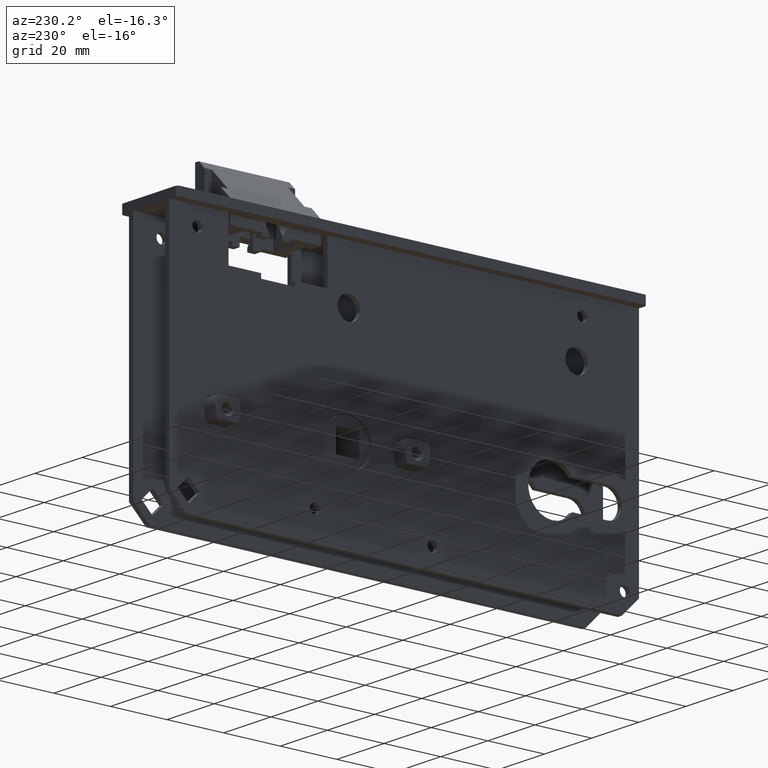
[diagram: clean part render]
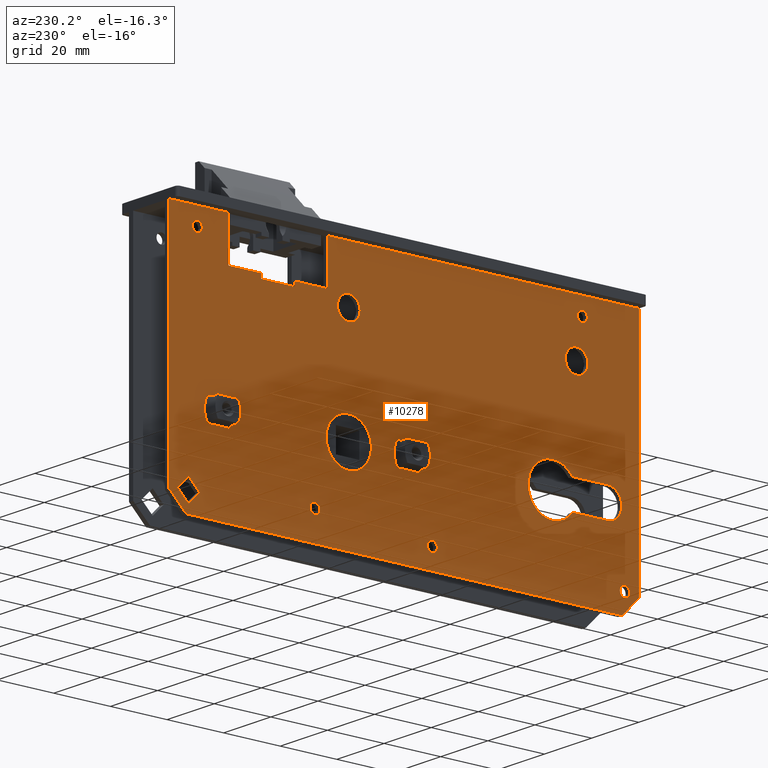
[diagram: same view with one face highlighted and labeled with its STEP entity id]
A machine part, auxiliary view. The second image highlights one B-rep face of the part: STEP entity #10278.
In plain terms, the highlighted planar face has unit normal (1, -0, 0).
Its self-contained STEP definition (entity closure, byte-faithful):
#1 = LINE ( 'NONE', #16878, #1610 ) ;
#57 = ORIENTED_EDGE ( 'NONE', *, *, #15429, .T. ) ;
#73 = ORIENTED_EDGE ( 'NONE', *, *, #82, .T. ) ;
#82 = EDGE_CURVE ( 'NONE', #15038, #3730, #16575, .T. ) ;
#93 = DIRECTION ( 'NONE',  ( 1.652117596168386277E-16, 1.000000000000000000, 1.766429458238740913E-15 ) ) ;
#138 = VECTOR ( 'NONE', #1923, 1000.000000000000114 ) ;
#185 = FACE_BOUND ( 'NONE', #13802, .T. ) ;
#215 = EDGE_LOOP ( 'NONE', ( #15592 ) ) ;
#231 = EDGE_LOOP ( 'NONE', ( #12084, #3676, #9453, #8192 ) ) ;
#271 = AXIS2_PLACEMENT_3D ( 'NONE', #13106, #4022, #5578 ) ;
#315 = VERTEX_POINT ( 'NONE', #9953 ) ;
#446 = CARTESIAN_POINT ( 'NONE',  ( -8.499999999999989342, 23.49999999999997513, -20.50000000000000355 ) ) ;
#537 = VECTOR ( 'NONE', #10323, 1000.000000000000000 ) ;
#656 = CARTESIAN_POINT ( 'NONE',  ( -8.499999999999984013, 61.99999999999995026, -18.10000000000000497 ) ) ;
#658 = VERTEX_POINT ( 'NONE', #8247 ) ;
#842 = CARTESIAN_POINT ( 'NONE',  ( -8.499999999999980460, 50.49999999999997158, -16.49999999999999645 ) ) ;
#1006 = VERTEX_POINT ( 'NONE', #9224 ) ;
#1055 = LINE ( 'NONE', #5900, #10754 ) ;
#1127 = CARTESIAN_POINT ( 'NONE',  ( -8.499999999999984013, 62.00000000000000000, -54.50000000000004974 ) ) ;
#1129 = DIRECTION ( 'NONE',  ( -1.784195975777012921E-16, -0.7071067811865459074, 0.7071067811865491270 ) ) ;
#1178 = ORIENTED_EDGE ( 'NONE', *, *, #18838, .T. ) ;
#1282 = ORIENTED_EDGE ( 'NONE', *, *, #18811, .T. ) ;
#1292 = CARTESIAN_POINT ( 'NONE',  ( -8.499999999999984013, 61.99999999999997158, -62.49999999999998579 ) ) ;
#1302 = CIRCLE ( 'NONE', #9158, 4.000000000000000000 ) ;
#1312 = DIRECTION ( 'NONE',  ( -0.000000000000000000, -1.000000000000000000, -0.000000000000000000 ) ) ;
#1402 = VERTEX_POINT ( 'NONE', #446 ) ;
#1441 = ORIENTED_EDGE ( 'NONE', *, *, #3894, .F. ) ;
#1473 = VERTEX_POINT ( 'NONE', #13992 ) ;
#1486 = EDGE_CURVE ( 'NONE', #10819, #7202, #14122, .T. ) ;
#1574 = CARTESIAN_POINT ( 'NONE',  ( -8.499999999999984013, 62.49999999999997158, -58.49999999999999289 ) ) ;
#1610 = VECTOR ( 'NONE', #10741, 1000.000000000000000 ) ;
#1759 = VERTEX_POINT ( 'NONE', #5515 ) ;
#1923 = DIRECTION ( 'NONE',  ( -1.168223555568283790E-16, -0.7071067811865474617, -0.7071067811865474617 ) ) ;
#1940 = DIRECTION ( 'NONE',  ( 0.000000000000000000, 0.000000000000000000, -1.000000000000000000 ) ) ;
#1947 = VERTEX_POINT ( 'NONE', #18530 ) ;
#1993 = VERTEX_POINT ( 'NONE', #6179 ) ;
#2069 = AXIS2_PLACEMENT_3D ( 'NONE', #13330, #7536, #16494 ) ;
#2074 = DIRECTION ( 'NONE',  ( 1.000000000000000000, -1.652117596168386277E-16, 0.000000000000000000 ) ) ;
#2168 = VECTOR ( 'NONE', #8171, 1000.000000000000000 ) ;
#2227 = ORIENTED_EDGE ( 'NONE', *, *, #14519, .T. ) ;
#2266 = EDGE_CURVE ( 'NONE', #8989, #12072, #1055, .T. ) ;
#2275 = VERTEX_POINT ( 'NONE', #19388 ) ;
#2365 = ORIENTED_EDGE ( 'NONE', *, *, #2266, .T. ) ;
#2415 = CIRCLE ( 'NONE', #11269, 1.750000000000001554 ) ;
#2505 = FACE_BOUND ( 'NONE', #14088, .T. ) ;
#2512 = AXIS2_PLACEMENT_3D ( 'NONE', #11110, #2074, #14198 ) ;
#2536 = DIRECTION ( 'NONE',  ( 0.000000000000000000, 1.000000000000000000, 0.000000000000000000 ) ) ;
#2557 = CARTESIAN_POINT ( 'NONE',  ( -8.500000000000003553, -63.00000000000001421, -7.500000000000007105 ) ) ;
#2630 = DIRECTION ( 'NONE',  ( 0.000000000000000000, 1.000000000000000000, 0.000000000000000000 ) ) ;
#2675 = VECTOR ( 'NONE', #4209, 1000.000000000000114 ) ;
#2694 = CARTESIAN_POINT ( 'NONE',  ( -8.499999999999982236, 67.55545635173697860, -95.05545635173699281 ) ) ;
#2746 = CARTESIAN_POINT ( 'NONE',  ( -8.499999999999992895, 26.99999999999997158, -1.500000000000000000 ) ) ;
#2772 = DIRECTION ( 'NONE',  ( 1.000000000000000000, -1.652117596168386277E-16, 0.000000000000000000 ) ) ;
#2854 = EDGE_CURVE ( 'NONE', #14000, #2956, #3626, .T. ) ;
#2877 = ORIENTED_EDGE ( 'NONE', *, *, #14469, .T. ) ;
#2932 = VECTOR ( 'NONE', #17921, 1000.000000000000000 ) ;
#2956 = VERTEX_POINT ( 'NONE', #14318 ) ;
#3063 = EDGE_CURVE ( 'NONE', #13145, #13145, #19286, .T. ) ;
#3101 = EDGE_CURVE ( 'NONE', #12387, #3689, #7231, .T. ) ;
#3333 = EDGE_LOOP ( 'NONE', ( #15862, #12240, #13845, #14138 ) ) ;
#3341 = LINE ( 'NONE', #12949, #12580 ) ;
#3446 = CARTESIAN_POINT ( 'NONE',  ( -8.499999999999982236, 74.75000000000000000, -7.500000000000007105 ) ) ;
#3587 = LINE ( 'NONE', #14511, #2168 ) ;
#3593 = VECTOR ( 'NONE', #7440, 1000.000000000000000 ) ;
#3596 = CARTESIAN_POINT ( 'NONE',  ( -8.499999999999982236, 70.55545635173697860, -80.94454364826299297 ) ) ;
#3626 = LINE ( 'NONE', #13997, #138 ) ;
#3676 = ORIENTED_EDGE ( 'NONE', *, *, #15837, .T. ) ;
#3689 = VERTEX_POINT ( 'NONE', #6866 ) ;
#3703 = FACE_BOUND ( 'NONE', #3333, .T. ) ;
#3730 = VERTEX_POINT ( 'NONE', #8559 ) ;
#3757 = VERTEX_POINT ( 'NONE', #19015 ) ;
#3770 = ORIENTED_EDGE ( 'NONE', *, *, #3911, .T. ) ;
#3892 = LINE ( 'NONE', #656, #13881 ) ;
#3894 = EDGE_CURVE ( 'NONE', #3757, #10399, #6482, .T. ) ;
#3911 = EDGE_CURVE ( 'NONE', #13617, #13617, #8836, .T. ) ;
#3912 = VERTEX_POINT ( 'NONE', #9167 ) ;
#4009 = DIRECTION ( 'NONE',  ( 2.168404344971008868E-16, 1.000000000000000000, 0.000000000000000000 ) ) ;
#4022 = DIRECTION ( 'NONE',  ( 1.000000000000000000, -1.652117596168386277E-16, 0.000000000000000000 ) ) ;
#4037 = CARTESIAN_POINT ( 'NONE',  ( -8.499999999999980460, 500000.0000000000582, -16.50000000000000000 ) ) ;
#4106 = CIRCLE ( 'NONE', #271, 4.000000000000003553 ) ;
#4165 = FACE_BOUND ( 'NONE', #8933, .T. ) ;
#4209 = DIRECTION ( 'NONE',  ( 1.168223555568283790E-16, 0.7071067811865474617, 0.7071067811865474617 ) ) ;
#4249 = CIRCLE ( 'NONE', #12393, 1.749999999999994671 ) ;
#4300 = EDGE_LOOP ( 'NONE', ( #17624 ) ) ;
#4530 = CARTESIAN_POINT ( 'NONE',  ( -8.499999999999984013, 61.99999999999997158, -54.49999999999999289 ) ) ;
#4604 = CIRCLE ( 'NONE', #16727, 8.000000000000000000 ) ;
#4725 = CARTESIAN_POINT ( 'NONE',  ( -8.499999999999987566, 50.49999999999997868, -18.09999999999999787 ) ) ;
#4922 = FACE_OUTER_BOUND ( 'NONE', #5155, .T. ) ;
#4967 = VECTOR ( 'NONE', #8760, 1000.000000000000000 ) ;
#4972 = EDGE_CURVE ( 'NONE', #5188, #11012, #3587, .T. ) ;
#5020 = CARTESIAN_POINT ( 'NONE',  ( -8.500000000000003553, -59.52281994643179530, -53.45000000000000284 ) ) ;
#5022 = CARTESIAN_POINT ( 'NONE',  ( -8.499999999999982236, 76.99999999999997158, -89.50000000000000000 ) ) ;
#5059 = VECTOR ( 'NONE', #18694, 1000.000000000000114 ) ;
#5155 = EDGE_LOOP ( 'NONE', ( #5158, #13705, #12026, #2365, #5782, #15272, #57, #13455, #11621, #16894, #18496, #1441, #13389, #8055 ) ) ;
#5158 = ORIENTED_EDGE ( 'NONE', *, *, #17371, .T. ) ;
#5188 = VERTEX_POINT ( 'NONE', #13448 ) ;
#5228 = ORIENTED_EDGE ( 'NONE', *, *, #5784, .T. ) ;
#5237 = DIRECTION ( 'NONE',  ( 2.005460665869139809E-16, 1.000000000000000000, 0.000000000000000000 ) ) ;
#5366 = PLANE ( 'NONE',  #17711 ) ;
#5392 = VECTOR ( 'NONE', #93, 1000.000000000000000 ) ;
#5515 = CARTESIAN_POINT ( 'NONE',  ( -8.499999999999980460, 82.99999999999998579, -1.500000000000000000 ) ) ;
#5578 = DIRECTION ( 'NONE',  ( 0.000000000000000000, 1.000000000000000000, 0.000000000000000000 ) ) ;
#5782 = ORIENTED_EDGE ( 'NONE', *, *, #7538, .T. ) ;
#5784 = EDGE_CURVE ( 'NONE', #1947, #1947, #9582, .T. ) ;
#5859 = ORIENTED_EDGE ( 'NONE', *, *, #9183, .T. ) ;
#5870 = CARTESIAN_POINT ( 'NONE',  ( -8.499999999999982236, 76.11091270347397142, -78.72182540694797126 ) ) ;
#5900 = CARTESIAN_POINT ( 'NONE',  ( -8.499999999999984013, 61.99999999999997158, -89.50000000000000000 ) ) ;
#5980 = DIRECTION ( 'NONE',  ( 1.000000000000000000, -1.652117596168386277E-16, 0.000000000000000000 ) ) ;
#6033 = CARTESIAN_POINT ( 'NONE',  ( -8.499999999999984013, 61.99999999999992184, -62.49999999999989342 ) ) ;
#6179 = CARTESIAN_POINT ( 'NONE',  ( -8.499999999999984013, 61.57179676972446458, -54.49999999999999289 ) ) ;
#6375 = EDGE_LOOP ( 'NONE', ( #18731 ) ) ;
#6397 = VERTEX_POINT ( 'NONE', #3446 ) ;
#6482 = LINE ( 'NONE', #18272, #18779 ) ;
#6517 = LINE ( 'NONE', #8997, #2932 ) ;
#6625 = CARTESIAN_POINT ( 'NONE',  ( -8.499999999999984013, 61.99999999999997158, -89.50000000000000000 ) ) ;
#6779 = ORIENTED_EDGE ( 'NONE', *, *, #8455, .T. ) ;
#6833 = CARTESIAN_POINT ( 'NONE',  ( -8.500000000000021316, -83.00000000000001421, -89.50000000000000000 ) ) ;
#6857 = DIRECTION ( 'NONE',  ( -1.652117596168386277E-16, -1.000000000000000000, 0.000000000000000000 ) ) ;
#6866 = CARTESIAN_POINT ( 'NONE',  ( -8.499999999999992895, -5.428203230275513214, -54.49999999999998579 ) ) ;
#7090 = EDGE_CURVE ( 'NONE', #1473, #1473, #11870, .T. ) ;
#7155 = DIRECTION ( 'NONE',  ( 1.000000000000000000, -1.652117596168386277E-16, 0.000000000000000000 ) ) ;
#7164 = AXIS2_PLACEMENT_3D ( 'NONE', #13536, #5980, #12261 ) ;
#7202 = VERTEX_POINT ( 'NONE', #18252 ) ;
#7223 = EDGE_CURVE ( 'NONE', #18857, #10399, #17316, .T. ) ;
#7229 = ORIENTED_EDGE ( 'NONE', *, *, #3101, .T. ) ;
#7231 = LINE ( 'NONE', #1127, #16160 ) ;
#7321 = CARTESIAN_POINT ( 'NONE',  ( -8.500000000000019540, -77.00000000000004263, -89.50000000000000000 ) ) ;
#7334 = VECTOR ( 'NONE', #17313, 1000.000000000000000 ) ;
#7343 = CARTESIAN_POINT ( 'NONE',  ( -8.499999999999984013, 61.99999999999997158, -1.500000000000000000 ) ) ;
#7404 = EDGE_CURVE ( 'NONE', #658, #1759, #3341, .T. ) ;
#7440 = DIRECTION ( 'NONE',  ( 2.523234146875355998E-16, 1.000000000000000000, 0.000000000000000000 ) ) ;
#7479 = EDGE_LOOP ( 'NONE', ( #15216 ) ) ;
#7494 = EDGE_CURVE ( 'NONE', #8989, #16438, #17068, .T. ) ;
#7536 = DIRECTION ( 'NONE',  ( 1.000000000000000000, -1.652117596168386277E-16, 0.000000000000000000 ) ) ;
#7538 = EDGE_CURVE ( 'NONE', #12072, #1759, #13780, .T. ) ;
#7651 = AXIS2_PLACEMENT_3D ( 'NONE', #18656, #14233, #5237 ) ;
#7755 = CARTESIAN_POINT ( 'NONE',  ( -8.499999999999984013, 68.49999999999997158, -58.49999999999999289 ) ) ;
#7794 = CARTESIAN_POINT ( 'NONE',  ( -8.499999999999992895, 2.428203230275482127, -54.49999999999999289 ) ) ;
#7835 = VERTEX_POINT ( 'NONE', #5020 ) ;
#7911 = LINE ( 'NONE', #5022, #5059 ) ;
#7935 = CARTESIAN_POINT ( 'NONE',  ( -8.499999999999989342, 31.49999999999997868, -79.50000000000000000 ) ) ;
#7953 = DIRECTION ( 'NONE',  ( 0.000000000000000000, 1.000000000000000000, 0.000000000000000000 ) ) ;
#7989 = CARTESIAN_POINT ( 'NONE',  ( -8.499999999999992895, 2.428203230275483016, -62.50000000000000000 ) ) ;
#8051 = VECTOR ( 'NONE', #9174, 1000.000000000000114 ) ;
#8055 = ORIENTED_EDGE ( 'NONE', *, *, #1486, .T. ) ;
#8146 = DIRECTION ( 'NONE',  ( 1.000000000000000000, -1.652117596168386277E-16, 0.000000000000000000 ) ) ;
#8171 = DIRECTION ( 'NONE',  ( 1.652117596168386277E-16, 1.000000000000000000, 0.000000000000000000 ) ) ;
#8192 = ORIENTED_EDGE ( 'NONE', *, *, #13603, .T. ) ;
#8247 = CARTESIAN_POINT ( 'NONE',  ( -8.499999999999980460, 82.99999999999998579, -83.49999999999994316 ) ) ;
#8455 = EDGE_CURVE ( 'NONE', #1006, #1006, #4249, .T. ) ;
#8457 = FACE_BOUND ( 'NONE', #11678, .T. ) ;
#8559 = CARTESIAN_POINT ( 'NONE',  ( -8.499999999999984013, 69.42820323027548568, -54.49999999999999289 ) ) ;
#8632 = DIRECTION ( 'NONE',  ( -0.000000000000000000, -1.000000000000000000, -0.000000000000000000 ) ) ;
#8760 = DIRECTION ( 'NONE',  ( 1.652117596168386277E-16, 1.000000000000000000, 0.000000000000000000 ) ) ;
#8836 = CIRCLE ( 'NONE', #7164, 8.000000000000000000 ) ;
#8932 = FACE_BOUND ( 'NONE', #215, .T. ) ;
#8933 = EDGE_LOOP ( 'NONE', ( #1282, #73, #5859, #2877 ) ) ;
#8974 = CARTESIAN_POINT ( 'NONE',  ( -8.499999999999982236, 74.44454364826299297, -77.05545635173697860 ) ) ;
#8989 = VERTEX_POINT ( 'NONE', #12309 ) ;
#8997 = CARTESIAN_POINT ( 'NONE',  ( -8.499999999999985789, 50.50000000000028422, -89.50000000000005684 ) ) ;
#9111 = CIRCLE ( 'NONE', #18391, 8.000000000000007105 ) ;
#9120 = EDGE_CURVE ( 'NONE', #11399, #14000, #10651, .T. ) ;
#9158 = AXIS2_PLACEMENT_3D ( 'NONE', #18502, #16980, #7953 ) ;
#9166 = FACE_BOUND ( 'NONE', #10118, .T. ) ;
#9167 = CARTESIAN_POINT ( 'NONE',  ( -8.499999999999991118, -5.428203230275524760, -62.50000000000001421 ) ) ;
#9174 = DIRECTION ( 'NONE',  ( 1.168223555568283790E-16, 0.7071067811865474617, -0.7071067811865474617 ) ) ;
#9183 = EDGE_CURVE ( 'NONE', #3730, #1993, #14215, .T. ) ;
#9220 = LINE ( 'NONE', #3596, #8051 ) ;
#9224 = CARTESIAN_POINT ( 'NONE',  ( -8.499999999999989342, 33.24999999999997158, -79.50000000000000000 ) ) ;
#9291 = CARTESIAN_POINT ( 'NONE',  ( -8.500000000000003553, -57.00000000000000711, -20.50000000000000355 ) ) ;
#9298 = CIRCLE ( 'NONE', #7651, 8.650000000000005684 ) ;
#9366 = EDGE_CURVE ( 'NONE', #2956, #315, #9220, .T. ) ;
#9425 = FACE_BOUND ( 'NONE', #231, .T. ) ;
#9453 = ORIENTED_EDGE ( 'NONE', *, *, #13630, .T. ) ;
#9582 = CIRCLE ( 'NONE', #12989, 1.749999999999996447 ) ;
#9611 = VECTOR ( 'NONE', #8632, 1000.000000000000000 ) ;
#9618 = ORIENTED_EDGE ( 'NONE', *, *, #14266, .T. ) ;
#9706 = VECTOR ( 'NONE', #13420, 1000.000000000000000 ) ;
#9736 = VERTEX_POINT ( 'NONE', #4725 ) ;
#9797 = AXIS2_PLACEMENT_3D ( 'NONE', #1574, #16774, #18162 ) ;
#9805 = CARTESIAN_POINT ( 'NONE',  ( -8.499999999999984013, 69.42820323027548568, -62.49999999999998579 ) ) ;
#9953 = CARTESIAN_POINT ( 'NONE',  ( -8.499999999999980460, 76.11091270347397142, -86.50000000000000000 ) ) ;
#10073 = VECTOR ( 'NONE', #1940, 1000.000000000000000 ) ;
#10116 = EDGE_CURVE ( 'NONE', #3912, #16804, #10588, .T. ) ;
#10118 = EDGE_LOOP ( 'NONE', ( #5228 ) ) ;
#10278 = ADVANCED_FACE ( 'NONE', ( #2505, #13679, #9425, #8457, #13191, #9166, #16487, #8932, #12232, #4165, #185, #3703, #4922 ), #5366, .F. ) ;
#10323 = DIRECTION ( 'NONE',  ( 1.652117596168386277E-16, 1.000000000000000000, 0.000000000000000000 ) ) ;
#10399 = VERTEX_POINT ( 'NONE', #2746 ) ;
#10588 = LINE ( 'NONE', #6033, #5392 ) ;
#10651 = LINE ( 'NONE', #8974, #11817 ) ;
#10741 = DIRECTION ( 'NONE',  ( 1.652117596168386277E-16, 1.000000000000000000, 0.000000000000000000 ) ) ;
#10754 = VECTOR ( 'NONE', #13514, 1000.000000000000000 ) ;
#10819 = VERTEX_POINT ( 'NONE', #13650 ) ;
#11012 = VERTEX_POINT ( 'NONE', #14423 ) ;
#11071 = CIRCLE ( 'NONE', #2069, 8.000000000000000000 ) ;
#11110 = CARTESIAN_POINT ( 'NONE',  ( -8.500000000000005329, -71.90000000000000568, -58.50000000000000000 ) ) ;
#11187 = DIRECTION ( 'NONE',  ( 1.652117596168386277E-16, 1.000000000000000000, 2.891205793294677833E-16 ) ) ;
#11269 = AXIS2_PLACEMENT_3D ( 'NONE', #19109, #17508, #2536 ) ;
#11399 = VERTEX_POINT ( 'NONE', #12540 ) ;
#11420 = CARTESIAN_POINT ( 'NONE',  ( -8.499999999999992895, -4.500000000000025757, -58.50000000000000000 ) ) ;
#11570 = CARTESIAN_POINT ( 'NONE',  ( -8.500000000000019540, -77.00000000000004263, -89.50000000000000000 ) ) ;
#11575 = EDGE_CURVE ( 'NONE', #10819, #3757, #17630, .T. ) ;
#11621 = ORIENTED_EDGE ( 'NONE', *, *, #12616, .T. ) ;
#11678 = EDGE_LOOP ( 'NONE', ( #3770 ) ) ;
#11719 = CARTESIAN_POINT ( 'NONE',  ( -8.500000000000005329, -78.00000000000002842, -82.49999999999998579 ) ) ;
#11720 = EDGE_CURVE ( 'NONE', #17985, #17985, #4106, .T. ) ;
#11758 = EDGE_CURVE ( 'NONE', #9736, #16438, #6517, .T. ) ;
#11817 = VECTOR ( 'NONE', #17899, 1000.000000000000114 ) ;
#11818 = CARTESIAN_POINT ( 'NONE',  ( -8.499999999999980460, 500000.0000000000582, -16.50000000000000000 ) ) ;
#11870 = CIRCLE ( 'NONE', #13391, 1.750000000000001554 ) ;
#12002 = CARTESIAN_POINT ( 'NONE',  ( -8.500000000000021316, -83.00000000000001421, -1.500000000000000000 ) ) ;
#12026 = ORIENTED_EDGE ( 'NONE', *, *, #7494, .F. ) ;
#12054 = DIRECTION ( 'NONE',  ( -0.000000000000000000, -0.000000000000000000, 1.000000000000000000 ) ) ;
#12072 = VERTEX_POINT ( 'NONE', #13006 ) ;
#12084 = ORIENTED_EDGE ( 'NONE', *, *, #4972, .T. ) ;
#12230 = DIRECTION ( 'NONE',  ( 2.168404344971006896E-16, 1.000000000000000000, 0.000000000000000000 ) ) ;
#12232 = FACE_BOUND ( 'NONE', #6375, .T. ) ;
#12240 = ORIENTED_EDGE ( 'NONE', *, *, #9120, .T. ) ;
#12261 = DIRECTION ( 'NONE',  ( 2.168404344971008868E-16, 1.000000000000000000, 0.000000000000000000 ) ) ;
#12309 = CARTESIAN_POINT ( 'NONE',  ( -8.499999999999980460, 61.99999999995498001, -16.50000000000000000 ) ) ;
#12387 = VERTEX_POINT ( 'NONE', #7794 ) ;
#12393 = AXIS2_PLACEMENT_3D ( 'NONE', #7935, #12476, #13887 ) ;
#12476 = DIRECTION ( 'NONE',  ( 1.000000000000000000, -1.652117596168386277E-16, 0.000000000000000000 ) ) ;
#12516 = CARTESIAN_POINT ( 'NONE',  ( -8.500000000000003553, -61.25000000000001421, -7.500000000000007105 ) ) ;
#12540 = CARTESIAN_POINT ( 'NONE',  ( -8.499999999999980460, 79.99999999999998579, -82.61091270347398563 ) ) ;
#12580 = VECTOR ( 'NONE', #13087, 1000.000000000000000 ) ;
#12616 = EDGE_CURVE ( 'NONE', #13454, #2275, #16409, .T. ) ;
#12628 = VECTOR ( 'NONE', #1129, 1000.000000000000114 ) ;
#12811 = VECTOR ( 'NONE', #6857, 1000.000000000000000 ) ;
#12949 = CARTESIAN_POINT ( 'NONE',  ( -8.499999999999980460, 82.99999999999998579, -89.50000000000000000 ) ) ;
#12989 = AXIS2_PLACEMENT_3D ( 'NONE', #17222, #18877, #15650 ) ;
#13006 = CARTESIAN_POINT ( 'NONE',  ( -8.499999999999984013, 61.99999999999997158, -1.500000000000000000 ) ) ;
#13054 = EDGE_CURVE ( 'NONE', #6397, #6397, #2415, .T. ) ;
#13078 = LINE ( 'NONE', #16756, #12811 ) ;
#13087 = DIRECTION ( 'NONE',  ( -0.000000000000000000, -0.000000000000000000, 1.000000000000000000 ) ) ;
#13106 = CARTESIAN_POINT ( 'NONE',  ( -8.500000000000003553, -61.00000000000001421, -20.50000000000000355 ) ) ;
#13145 = VERTEX_POINT ( 'NONE', #12516 ) ;
#13191 = FACE_BOUND ( 'NONE', #7479, .T. ) ;
#13330 = CARTESIAN_POINT ( 'NONE',  ( -8.499999999999992895, 1.499999999999974465, -58.50000000000000000 ) ) ;
#13389 = ORIENTED_EDGE ( 'NONE', *, *, #11575, .F. ) ;
#13391 = AXIS2_PLACEMENT_3D ( 'NONE', #11719, #2772, #2630 ) ;
#13420 = DIRECTION ( 'NONE',  ( -1.652117596168386277E-16, -1.000000000000000000, 0.000000000000000000 ) ) ;
#13448 = CARTESIAN_POINT ( 'NONE',  ( -8.500000000000005329, -71.90000000000000568, -63.54999999999999716 ) ) ;
#13454 = VERTEX_POINT ( 'NONE', #7321 ) ;
#13455 = ORIENTED_EDGE ( 'NONE', *, *, #19024, .F. ) ;
#13514 = DIRECTION ( 'NONE',  ( -0.000000000000000000, -0.000000000000000000, 1.000000000000000000 ) ) ;
#13536 = CARTESIAN_POINT ( 'NONE',  ( -8.499999999999989342, 19.49999999999997513, -58.50000000000000000 ) ) ;
#13603 = EDGE_CURVE ( 'NONE', #15420, #5188, #16368, .T. ) ;
#13617 = VERTEX_POINT ( 'NONE', #13795 ) ;
#13630 = EDGE_CURVE ( 'NONE', #7835, #15420, #13078, .T. ) ;
#13634 = AXIS2_PLACEMENT_3D ( 'NONE', #2557, #14698, #19127 ) ;
#13650 = CARTESIAN_POINT ( 'NONE',  ( -8.499999999999980460, 38.49999999999909051, -16.50000000000000000 ) ) ;
#13679 = FACE_BOUND ( 'NONE', #4300, .T. ) ;
#13705 = ORIENTED_EDGE ( 'NONE', *, *, #11758, .T. ) ;
#13780 = LINE ( 'NONE', #7343, #537 ) ;
#13795 = CARTESIAN_POINT ( 'NONE',  ( -8.499999999999989342, 27.49999999999997513, -58.50000000000000000 ) ) ;
#13802 = EDGE_LOOP ( 'NONE', ( #15689, #9618, #7229, #1178 ) ) ;
#13832 = DIRECTION ( 'NONE',  ( 1.000000000000000000, -1.652117596168386277E-16, 0.000000000000000000 ) ) ;
#13845 = ORIENTED_EDGE ( 'NONE', *, *, #2854, .T. ) ;
#13881 = VECTOR ( 'NONE', #11187, 1000.000000000000000 ) ;
#13887 = DIRECTION ( 'NONE',  ( 0.000000000000000000, 1.000000000000000000, 0.000000000000000000 ) ) ;
#13992 = CARTESIAN_POINT ( 'NONE',  ( -8.500000000000005329, -76.25000000000002842, -82.49999999999998579 ) ) ;
#13997 = CARTESIAN_POINT ( 'NONE',  ( -8.499999999999984013, 63.66636905521096423, -91.16636905521099266 ) ) ;
#14000 = VERTEX_POINT ( 'NONE', #5870 ) ;
#14088 = EDGE_LOOP ( 'NONE', ( #2227 ) ) ;
#14122 = LINE ( 'NONE', #18560, #10073 ) ;
#14130 = VERTEX_POINT ( 'NONE', #14305 ) ;
#14138 = ORIENTED_EDGE ( 'NONE', *, *, #9366, .T. ) ;
#14198 = DIRECTION ( 'NONE',  ( 0.000000000000000000, 1.000000000000000000, 0.000000000000000000 ) ) ;
#14215 = LINE ( 'NONE', #4530, #9706 ) ;
#14233 = DIRECTION ( 'NONE',  ( 1.000000000000000000, -1.652117596168386277E-16, 0.000000000000000000 ) ) ;
#14266 = EDGE_CURVE ( 'NONE', #16804, #12387, #4604, .T. ) ;
#14305 = CARTESIAN_POINT ( 'NONE',  ( -8.499999999999982236, 76.99999999999997158, -89.50000000000000000 ) ) ;
#14318 = CARTESIAN_POINT ( 'NONE',  ( -8.499999999999982236, 72.22182540694797126, -82.61091270347398563 ) ) ;
#14423 = CARTESIAN_POINT ( 'NONE',  ( -8.500000000000003553, -59.52281994643179530, -63.55000000000001137 ) ) ;
#14469 = EDGE_CURVE ( 'NONE', #1993, #14853, #9111, .T. ) ;
#14511 = CARTESIAN_POINT ( 'NONE',  ( -8.499999999999984013, 61.99999999999997158, -63.55000000000001137 ) ) ;
#14519 = EDGE_CURVE ( 'NONE', #1402, #1402, #1302, .T. ) ;
#14698 = DIRECTION ( 'NONE',  ( 1.000000000000000000, -1.652117596168386277E-16, 0.000000000000000000 ) ) ;
#14764 = DIRECTION ( 'NONE',  ( -1.652117596168386277E-16, -1.000000000000000000, 8.832147291193704566E-16 ) ) ;
#14853 = VERTEX_POINT ( 'NONE', #16742 ) ;
#15038 = VERTEX_POINT ( 'NONE', #9805 ) ;
#15216 = ORIENTED_EDGE ( 'NONE', *, *, #7090, .T. ) ;
#15272 = ORIENTED_EDGE ( 'NONE', *, *, #7404, .F. ) ;
#15401 = LINE ( 'NONE', #6833, #7334 ) ;
#15420 = VERTEX_POINT ( 'NONE', #17033 ) ;
#15429 = EDGE_CURVE ( 'NONE', #658, #14130, #7911, .T. ) ;
#15592 = ORIENTED_EDGE ( 'NONE', *, *, #13054, .T. ) ;
#15650 = DIRECTION ( 'NONE',  ( 0.000000000000000000, 1.000000000000000000, 0.000000000000000000 ) ) ;
#15661 = VECTOR ( 'NONE', #1312, 1000.000000000000000 ) ;
#15689 = ORIENTED_EDGE ( 'NONE', *, *, #10116, .T. ) ;
#15837 = EDGE_CURVE ( 'NONE', #11012, #7835, #9298, .T. ) ;
#15862 = ORIENTED_EDGE ( 'NONE', *, *, #17828, .T. ) ;
#16160 = VECTOR ( 'NONE', #14764, 1000.000000000000000 ) ;
#16368 = CIRCLE ( 'NONE', #2512, 5.049999999999998934 ) ;
#16409 = LINE ( 'NONE', #11570, #12628 ) ;
#16438 = VERTEX_POINT ( 'NONE', #842 ) ;
#16487 = FACE_BOUND ( 'NONE', #18227, .T. ) ;
#16494 = DIRECTION ( 'NONE',  ( 2.168404344971008868E-16, 1.000000000000000000, 0.000000000000000000 ) ) ;
#16575 = CIRCLE ( 'NONE', #9797, 8.000000000000007105 ) ;
#16671 = CARTESIAN_POINT ( 'NONE',  ( -8.500000000000021316, -83.00000000000001421, -1.500000000000000000 ) ) ;
#16727 = AXIS2_PLACEMENT_3D ( 'NONE', #11420, #7155, #4009 ) ;
#16742 = CARTESIAN_POINT ( 'NONE',  ( -8.499999999999982236, 61.57179676972446458, -62.49999999999998579 ) ) ;
#16756 = CARTESIAN_POINT ( 'NONE',  ( -8.499999999999984013, 61.99999999999997158, -53.45000000000000284 ) ) ;
#16774 = DIRECTION ( 'NONE',  ( 1.000000000000000000, -1.652117596168386277E-16, 0.000000000000000000 ) ) ;
#16804 = VERTEX_POINT ( 'NONE', #7989 ) ;
#16878 = CARTESIAN_POINT ( 'NONE',  ( -8.499999999999984013, 61.99999999999997158, -89.50000000000000000 ) ) ;
#16894 = ORIENTED_EDGE ( 'NONE', *, *, #18229, .T. ) ;
#16980 = DIRECTION ( 'NONE',  ( 1.000000000000000000, -1.652117596168386277E-16, 0.000000000000000000 ) ) ;
#17033 = CARTESIAN_POINT ( 'NONE',  ( -8.500000000000005329, -71.90000000000001990, -53.45000000000000284 ) ) ;
#17068 = LINE ( 'NONE', #11818, #15661 ) ;
#17129 = LINE ( 'NONE', #2694, #2675 ) ;
#17222 = CARTESIAN_POINT ( 'NONE',  ( -8.499999999999994671, -10.00000000000002309, -82.49999999999998579 ) ) ;
#17313 = DIRECTION ( 'NONE',  ( -0.000000000000000000, -0.000000000000000000, 1.000000000000000000 ) ) ;
#17316 = LINE ( 'NONE', #16671, #3593 ) ;
#17371 = EDGE_CURVE ( 'NONE', #7202, #9736, #3892, .T. ) ;
#17508 = DIRECTION ( 'NONE',  ( 1.000000000000000000, -1.652117596168386277E-16, 0.000000000000000000 ) ) ;
#17624 = ORIENTED_EDGE ( 'NONE', *, *, #11720, .T. ) ;
#17630 = LINE ( 'NONE', #4037, #9611 ) ;
#17711 = AXIS2_PLACEMENT_3D ( 'NONE', #6625, #8146, #18768 ) ;
#17828 = EDGE_CURVE ( 'NONE', #315, #11399, #17129, .T. ) ;
#17899 = DIRECTION ( 'NONE',  ( -1.168223555568283790E-16, -0.7071067811865474617, 0.7071067811865474617 ) ) ;
#17921 = DIRECTION ( 'NONE',  ( -7.164917947869172576E-31, -4.336808689942016158E-15, 1.000000000000000000 ) ) ;
#17985 = VERTEX_POINT ( 'NONE', #9291 ) ;
#18162 = DIRECTION ( 'NONE',  ( 2.168404344971006896E-16, 1.000000000000000000, 0.000000000000000000 ) ) ;
#18227 = EDGE_LOOP ( 'NONE', ( #6779 ) ) ;
#18229 = EDGE_CURVE ( 'NONE', #2275, #18857, #15401, .T. ) ;
#18252 = CARTESIAN_POINT ( 'NONE',  ( -8.499999999999987566, 38.49999999999997158, -18.10000000000000142 ) ) ;
#18272 = CARTESIAN_POINT ( 'NONE',  ( -8.499999999999992895, 26.99999999999997158, -89.50000000000000000 ) ) ;
#18391 = AXIS2_PLACEMENT_3D ( 'NONE', #7755, #13832, #12230 ) ;
#18496 = ORIENTED_EDGE ( 'NONE', *, *, #7223, .T. ) ;
#18502 = CARTESIAN_POINT ( 'NONE',  ( -8.499999999999989342, 19.49999999999997513, -20.50000000000000355 ) ) ;
#18530 = CARTESIAN_POINT ( 'NONE',  ( -8.499999999999994671, -8.250000000000026645, -82.49999999999998579 ) ) ;
#18560 = CARTESIAN_POINT ( 'NONE',  ( -8.499999999999987566, 38.49999999999997158, -89.50000000000000000 ) ) ;
#18656 = CARTESIAN_POINT ( 'NONE',  ( -8.500000000000001776, -52.50000000000002132, -58.50000000000000000 ) ) ;
#18694 = DIRECTION ( 'NONE',  ( -1.168223555568281078E-16, -0.7071067811865459074, -0.7071067811865491270 ) ) ;
#18731 = ORIENTED_EDGE ( 'NONE', *, *, #3063, .T. ) ;
#18768 = DIRECTION ( 'NONE',  ( 1.652117596168386277E-16, 1.000000000000000000, 0.000000000000000000 ) ) ;
#18779 = VECTOR ( 'NONE', #12054, 1000.000000000000000 ) ;
#18811 = EDGE_CURVE ( 'NONE', #14853, #15038, #19140, .T. ) ;
#18838 = EDGE_CURVE ( 'NONE', #3689, #3912, #11071, .T. ) ;
#18857 = VERTEX_POINT ( 'NONE', #12002 ) ;
#18877 = DIRECTION ( 'NONE',  ( 1.000000000000000000, -1.652117596168386277E-16, 0.000000000000000000 ) ) ;
#19015 = CARTESIAN_POINT ( 'NONE',  ( -8.499999999999992895, 26.99999999999997158, -16.50000000000000000 ) ) ;
#19024 = EDGE_CURVE ( 'NONE', #13454, #14130, #1, .T. ) ;
#19109 = CARTESIAN_POINT ( 'NONE',  ( -8.499999999999982236, 73.00000000000000000, -7.500000000000007105 ) ) ;
#19127 = DIRECTION ( 'NONE',  ( 0.000000000000000000, 1.000000000000000000, 0.000000000000000000 ) ) ;
#19140 = LINE ( 'NONE', #1292, #4967 ) ;
#19286 = CIRCLE ( 'NONE', #13634, 1.750000000000001554 ) ;
#19388 = CARTESIAN_POINT ( 'NONE',  ( -8.500000000000021316, -83.00000000000001421, -83.49999999999998579 ) ) ;